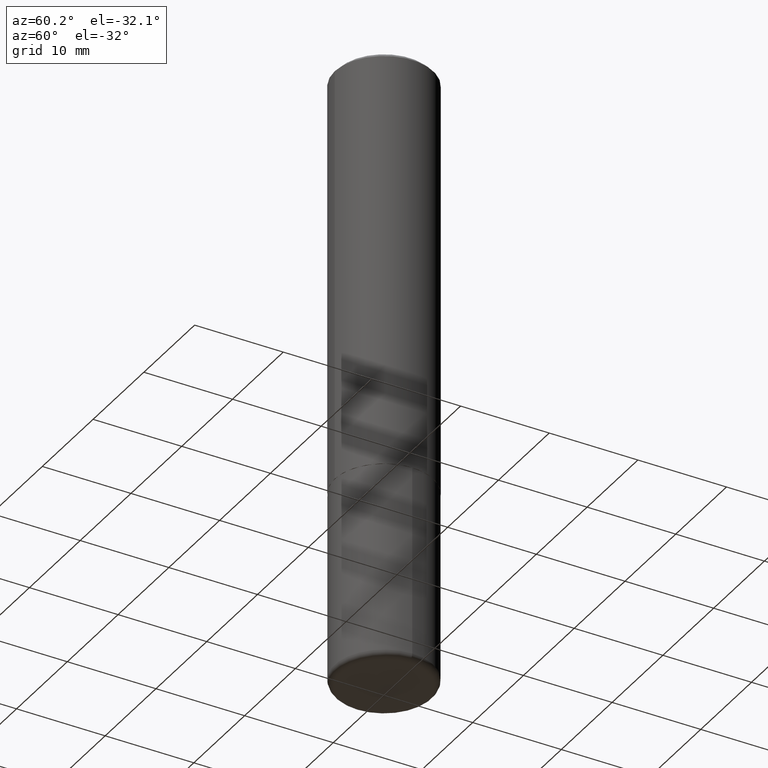
[diagram: clean part render]
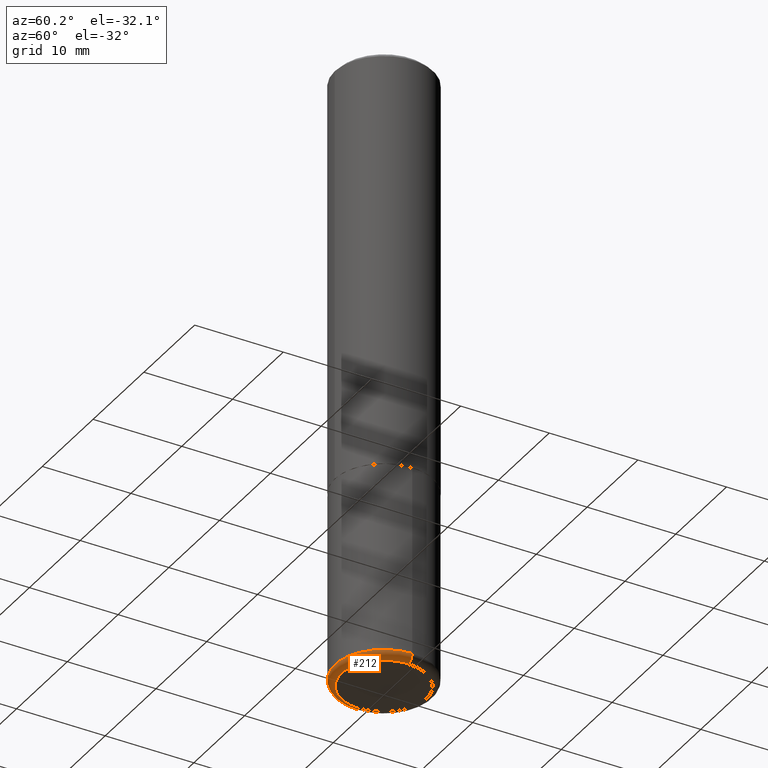
[diagram: same view with one face highlighted and labeled with its STEP entity id]
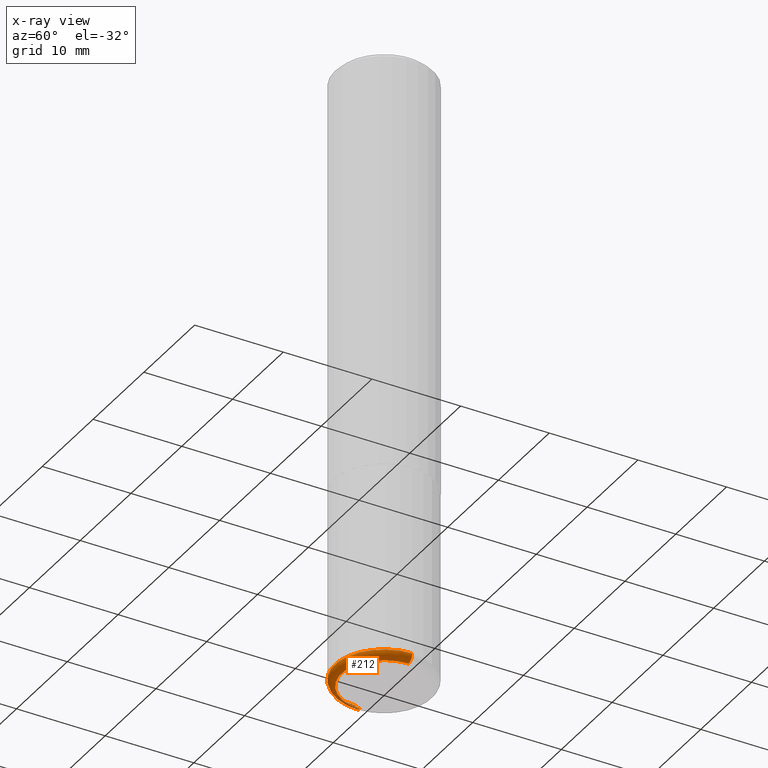
[diagram: x-ray of the same camera — body ghosted, the highlighted face saturated]
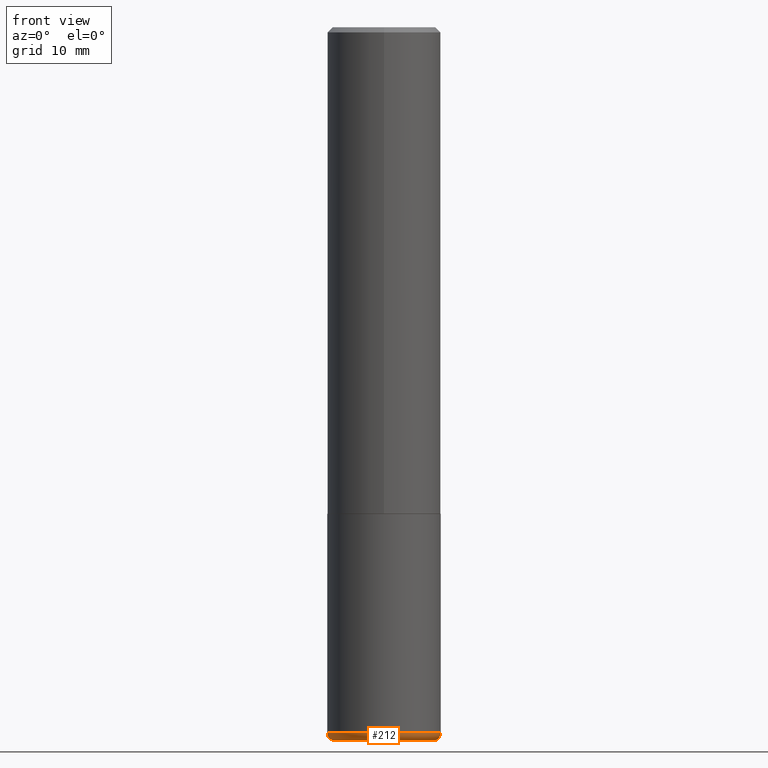
[diagram: same view with one face highlighted and labeled with its STEP entity id]
A machine part, auxiliary view. The second image highlights one B-rep face of the part: STEP entity #212.
The next image is the same camera in x-ray: the body ghosted, the highlighted face saturated — about 0% of this face is hidden behind the body in this view.
A second angle (front view) of the same face is appended — the face is thin or edge-on in the first view.
In plain terms, the highlighted toroidal blend (fillet) surface has major radius 4.7942 mm and minor (blend) radius 0.762 mm.
Its self-contained STEP definition (entity closure, byte-faithful):
#5 = EDGE_CURVE ( 'NONE', #14, #292, #167, .T. ) ;
#14 = VERTEX_POINT ( 'NONE', #371 ) ;
#22 = DIRECTION ( 'NONE',  ( -2.445468806185136597E-29, 3.491481338843145583E-15, 1.000000000000000000 ) ) ;
#23 = AXIS2_PLACEMENT_3D ( 'NONE', #258, #295, #227 ) ;
#32 = CIRCLE ( 'NONE', #67, 0.1887500000000000011 ) ;
#41 = EDGE_LOOP ( 'NONE', ( #102, #166, #349, #220 ) ) ;
#51 = CARTESIAN_POINT ( 'NONE',  ( 0.1887500000000000011, -1.091960788723193160E-14, -2.749999999999999556 ) ) ;
#56 = DIRECTION ( 'NONE',  ( -2.445468806185136597E-29, 3.491481338843145583E-15, 1.000000000000000000 ) ) ;
#67 = AXIS2_PLACEMENT_3D ( 'NONE', #370, #56, #269 ) ;
#68 = EDGE_CURVE ( 'NONE', #78, #292, #273, .T. ) ;
#78 = VERTEX_POINT ( 'NONE', #51 ) ;
#85 = DIRECTION ( 'NONE',  ( 1.000000000000000000, -6.982962677686271444E-15, 0.000000000000000000 ) ) ;
#102 = ORIENTED_EDGE ( 'NONE', *, *, #125, .F. ) ;
#122 = AXIS2_PLACEMENT_3D ( 'NONE', #406, #22, #85 ) ;
#123 = AXIS2_PLACEMENT_3D ( 'NONE', #332, #242, #278 ) ;
#125 = EDGE_CURVE ( 'NONE', #200, #14, #388, .T. ) ;
#166 = ORIENTED_EDGE ( 'NONE', *, *, #416, .T. ) ;
#167 = CIRCLE ( 'NONE', #122, 0.2187500000000000278 ) ;
#168 = DIRECTION ( 'NONE',  ( 1.000000000000000000, -6.982962677686269866E-15, 0.000000000000000000 ) ) ;
#200 = VERTEX_POINT ( 'NONE', #226 ) ;
#212 = ADVANCED_FACE ( 'NONE', ( #277 ), #300, .T. ) ;
#220 = ORIENTED_EDGE ( 'NONE', *, *, #5, .F. ) ;
#223 = AXIS2_PLACEMENT_3D ( 'NONE', #270, #395, #168 ) ;
#226 = CARTESIAN_POINT ( 'NONE',  ( -0.1887500000000000011, -8.101470637624799929E-15, -2.749999999999999556 ) ) ;
#227 = DIRECTION ( 'NONE',  ( -1.000000000000000000, 7.105427357600993970E-15, 0.000000000000000000 ) ) ;
#228 = CARTESIAN_POINT ( 'NONE',  ( 0.2187499999999998890, -1.102435232739722812E-14, -2.719999999999999751 ) ) ;
#242 = DIRECTION ( 'NONE',  ( -2.445468806185136597E-29, 3.491481338843145583E-15, 1.000000000000000000 ) ) ;
#258 = CARTESIAN_POINT ( 'NONE',  ( -0.1887500000000000011, -8.155679827906167578E-15, -2.719999999999999751 ) ) ;
#269 = DIRECTION ( 'NONE',  ( 1.000000000000000000, -6.982962677686272233E-15, 0.000000000000000000 ) ) ;
#270 = CARTESIAN_POINT ( 'NONE',  ( 0.1887500000000000011, -1.081486344706663980E-14, -2.719999999999999751 ) ) ;
#273 = CIRCLE ( 'NONE', #223, 0.02999999999999971440 ) ;
#277 = FACE_OUTER_BOUND ( 'NONE', #41, .T. ) ;
#278 = DIRECTION ( 'NONE',  ( 1.000000000000000000, -6.982962677686262766E-15, 4.883557194083112340E-29 ) ) ;
#292 = VERTEX_POINT ( 'NONE', #228 ) ;
#295 = DIRECTION ( 'NONE',  ( 7.105427357601001859E-15, 1.000000000000000000, -3.491481338843145583E-15 ) ) ;
#300 = TOROIDAL_SURFACE ( 'NONE', #123, 0.1887500000000000011, 0.02999999999999971440 ) ;
#332 = CARTESIAN_POINT ( 'NONE',  ( 6.651675152823572126E-29, -9.496829241653356490E-15, -2.719999999999999751 ) ) ;
#349 = ORIENTED_EDGE ( 'NONE', *, *, #68, .T. ) ;
#370 = CARTESIAN_POINT ( 'NONE',  ( 6.725039217009123399E-29, -9.601573681818648281E-15, -2.749999999999999556 ) ) ;
#371 = CARTESIAN_POINT ( 'NONE',  ( -0.2187499999999998890, -7.942517007178138911E-15, -2.719999999999999751 ) ) ;
#388 = CIRCLE ( 'NONE', #23, 0.02999999999999971440 ) ;
#395 = DIRECTION ( 'NONE',  ( -6.982962677686266711E-15, -1.000000000000000000, 3.491481338843145583E-15 ) ) ;
#406 = CARTESIAN_POINT ( 'NONE',  ( 6.651675152823572126E-29, -9.496829241653356490E-15, -2.719999999999999751 ) ) ;
#416 = EDGE_CURVE ( 'NONE', #200, #78, #32, .T. ) ;